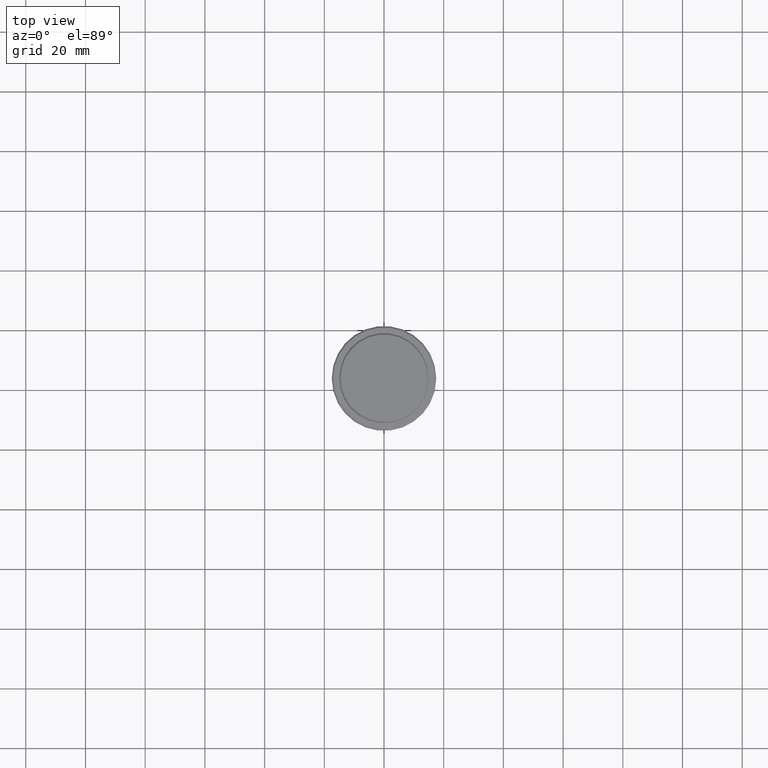
[diagram: clean part render]
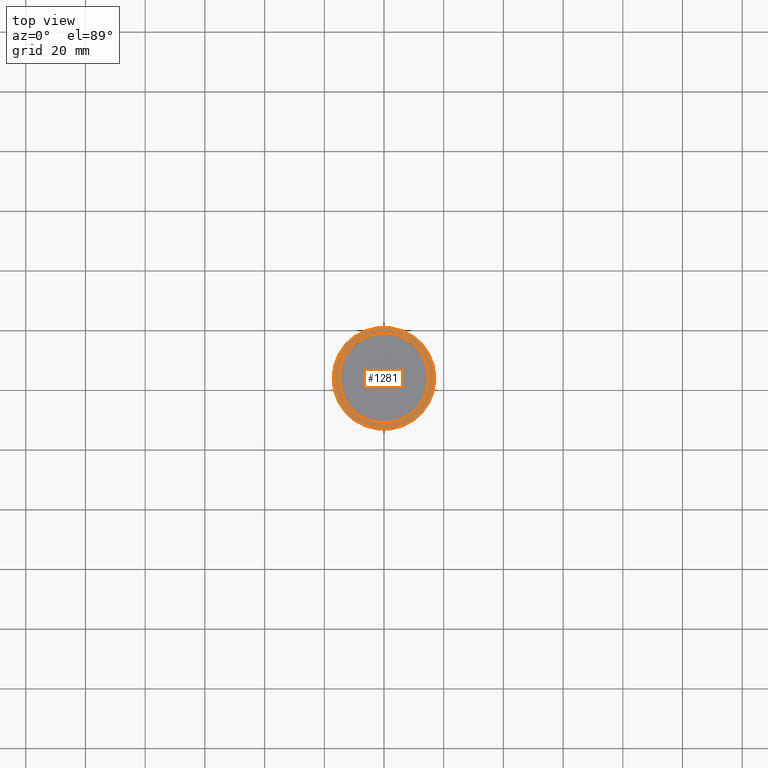
[diagram: same view with one face highlighted and labeled with its STEP entity id]
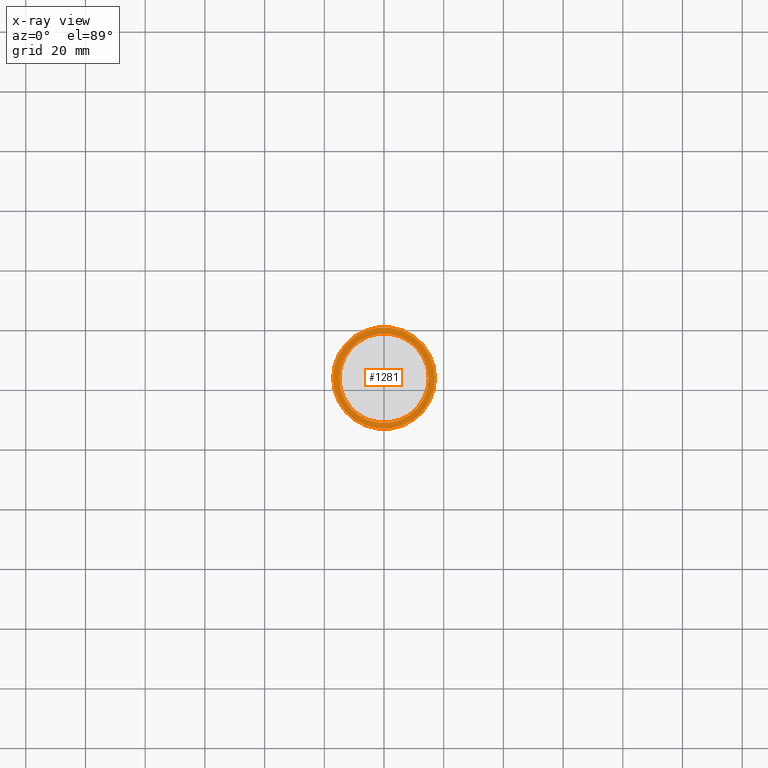
[diagram: x-ray of the same camera — body ghosted, the highlighted face saturated]
A machine part, top view. The second image highlights one B-rep face of the part: STEP entity #1281.
The next image is the same camera in x-ray: the body ghosted, the highlighted face saturated — about 0% of this face is hidden behind the body in this view.
In plain terms, the highlighted planar face has unit normal (0, -0, 1).
Its self-contained STEP definition (entity closure, byte-faithful):
#149 = AXIS2_PLACEMENT_3D ( 'NONE', #639, #854, #1414 ) ;
#164 = CARTESIAN_POINT ( 'NONE',  ( 0.000000000000000000, 0.000000000000000000, -9.000000000000001776 ) ) ;
#198 = EDGE_LOOP ( 'NONE', ( #335, #753 ) ) ;
#206 = DIRECTION ( 'NONE',  ( 1.000000000000000000, 0.000000000000000000, 0.000000000000000000 ) ) ;
#254 = DIRECTION ( 'NONE',  ( 0.000000000000000000, -0.000000000000000000, 1.000000000000000000 ) ) ;
#293 = CARTESIAN_POINT ( 'NONE',  ( -14.99999999999999467, 1.836970198721029194E-15, -9.000000000000001776 ) ) ;
#335 = ORIENTED_EDGE ( 'NONE', *, *, #518, .T. ) ;
#493 = DIRECTION ( 'NONE',  ( -0.000000000000000000, -0.000000000000000000, 1.000000000000000000 ) ) ;
#518 = EDGE_CURVE ( 'NONE', #1331, #1229, #949, .T. ) ;
#536 = CARTESIAN_POINT ( 'NONE',  ( 14.99999999999999467, 0.000000000000000000, -9.000000000000001776 ) ) ;
#570 = CARTESIAN_POINT ( 'NONE',  ( 0.000000000000000000, 14.49999999999999467, -9.000000000000001776 ) ) ;
#577 = EDGE_LOOP ( 'NONE', ( #981, #1076 ) ) ;
#631 = CARTESIAN_POINT ( 'NONE',  ( 0.000000000000000000, 0.000000000000000000, -9.000000000000001776 ) ) ;
#639 = CARTESIAN_POINT ( 'NONE',  ( 0.000000000000000000, 0.000000000000000000, -9.000000000000001776 ) ) ;
#653 = CIRCLE ( 'NONE', #744, 17.00000000000001421 ) ;
#730 = EDGE_CURVE ( 'NONE', #1176, #1063, #764, .T. ) ;
#744 = AXIS2_PLACEMENT_3D ( 'NONE', #631, #846, #1057 ) ;
#753 = ORIENTED_EDGE ( 'NONE', *, *, #1091, .T. ) ;
#764 = CIRCLE ( 'NONE', #149, 14.99999999999999467 ) ;
#817 = AXIS2_PLACEMENT_3D ( 'NONE', #570, #254, #1003 ) ;
#846 = DIRECTION ( 'NONE',  ( -0.000000000000000000, -0.000000000000000000, 1.000000000000000000 ) ) ;
#852 = DIRECTION ( 'NONE',  ( 0.000000000000000000, 0.000000000000000000, -1.000000000000000000 ) ) ;
#854 = DIRECTION ( 'NONE',  ( 0.000000000000000000, 0.000000000000000000, -1.000000000000000000 ) ) ;
#861 = AXIS2_PLACEMENT_3D ( 'NONE', #164, #493, #1060 ) ;
#876 = PLANE ( 'NONE',  #817 ) ;
#949 = CIRCLE ( 'NONE', #861, 17.00000000000001421 ) ;
#962 = CARTESIAN_POINT ( 'NONE',  ( 0.000000000000000000, 0.000000000000000000, -9.000000000000001776 ) ) ;
#975 = AXIS2_PLACEMENT_3D ( 'NONE', #962, #852, #206 ) ;
#980 = FACE_OUTER_BOUND ( 'NONE', #198, .T. ) ;
#981 = ORIENTED_EDGE ( 'NONE', *, *, #1121, .T. ) ;
#998 = CIRCLE ( 'NONE', #975, 14.99999999999999467 ) ;
#1003 = DIRECTION ( 'NONE',  ( 1.000000000000000000, 0.000000000000000000, 0.000000000000000000 ) ) ;
#1057 = DIRECTION ( 'NONE',  ( 1.000000000000000000, 0.000000000000000000, 0.000000000000000000 ) ) ;
#1060 = DIRECTION ( 'NONE',  ( 1.000000000000000000, 0.000000000000000000, 0.000000000000000000 ) ) ;
#1063 = VERTEX_POINT ( 'NONE', #536 ) ;
#1076 = ORIENTED_EDGE ( 'NONE', *, *, #730, .T. ) ;
#1091 = EDGE_CURVE ( 'NONE', #1229, #1331, #653, .T. ) ;
#1110 = CARTESIAN_POINT ( 'NONE',  ( 17.00000000000001421, 2.112515728529185250E-15, -9.000000000000001776 ) ) ;
#1121 = EDGE_CURVE ( 'NONE', #1063, #1176, #998, .T. ) ;
#1176 = VERTEX_POINT ( 'NONE', #293 ) ;
#1229 = VERTEX_POINT ( 'NONE', #1110 ) ;
#1281 = ADVANCED_FACE ( 'NONE', ( #980, #1412 ), #876, .T. ) ;
#1331 = VERTEX_POINT ( 'NONE', #1345 ) ;
#1345 = CARTESIAN_POINT ( 'NONE',  ( -17.00000000000001421, 0.000000000000000000, -9.000000000000001776 ) ) ;
#1412 = FACE_BOUND ( 'NONE', #577, .T. ) ;
#1414 = DIRECTION ( 'NONE',  ( 1.000000000000000000, 0.000000000000000000, 0.000000000000000000 ) ) ;